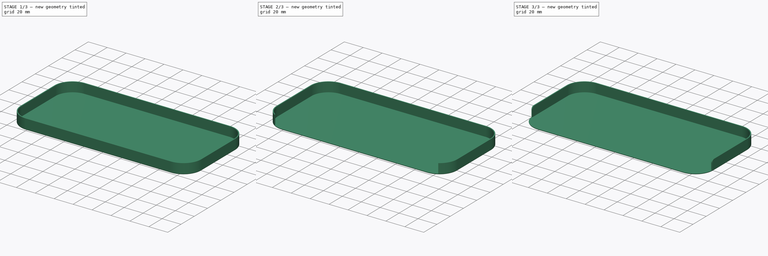
[diagram: build sequence overview — one tinted view per stage of 3, left to right]
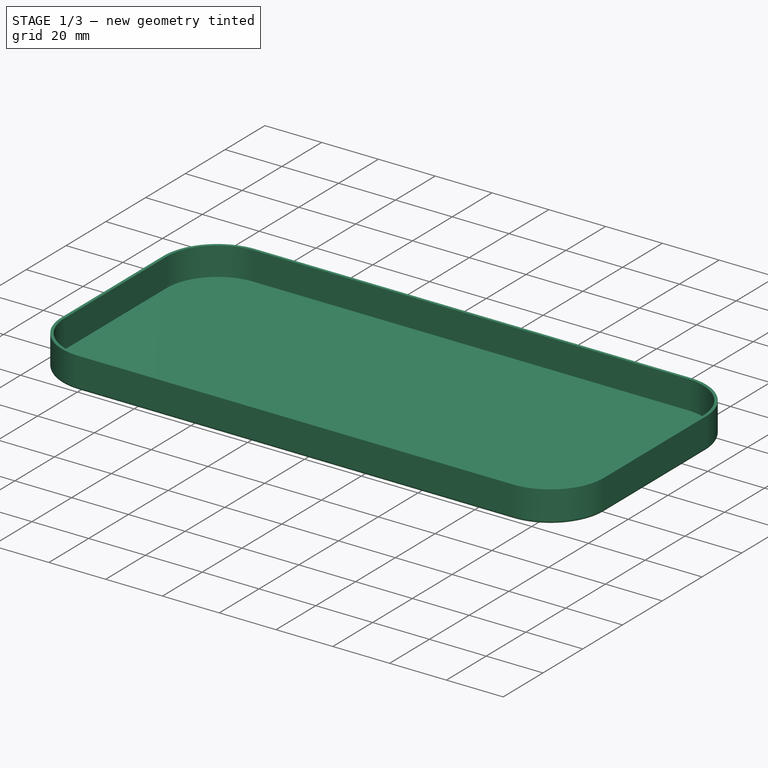
[diagram: stage 1 of 3 — iso view after this stage's code; geometry added in this stage tinted green]
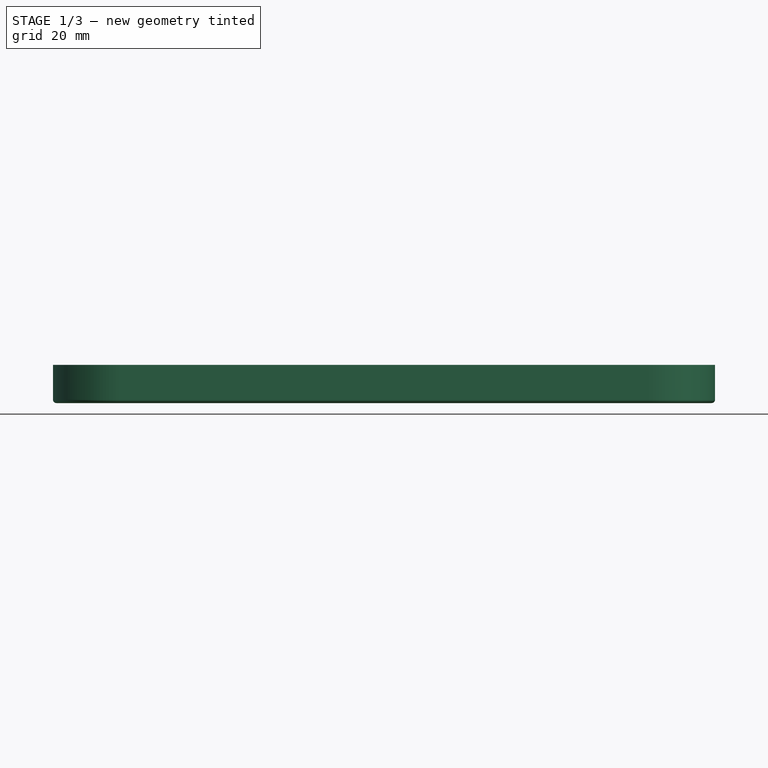
[diagram: stage 1 of 3 — front view after this stage's code; geometry added in this stage tinted green]
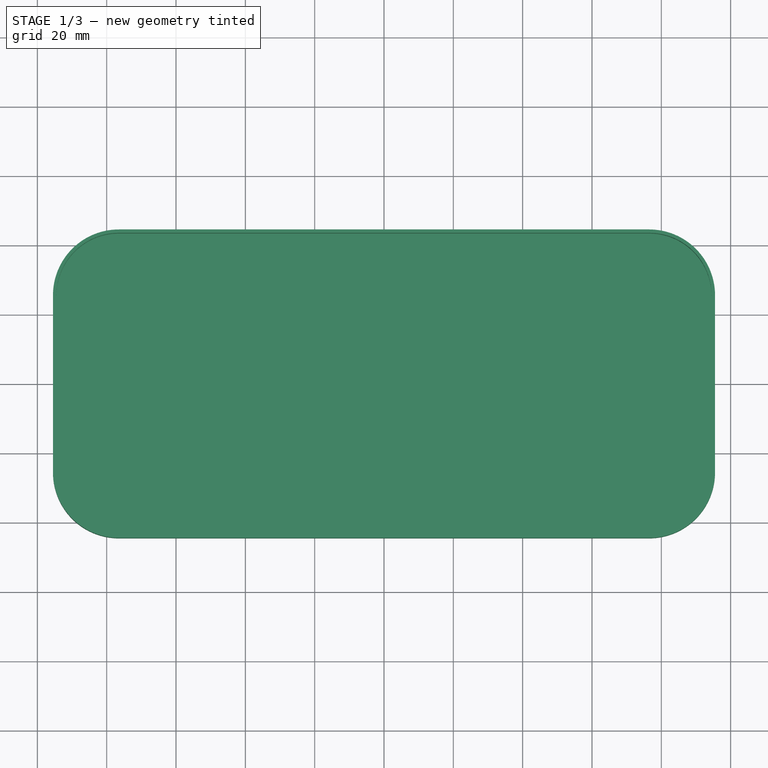
[diagram: stage 1 of 3 — top view after this stage's code; geometry added in this stage tinted green]
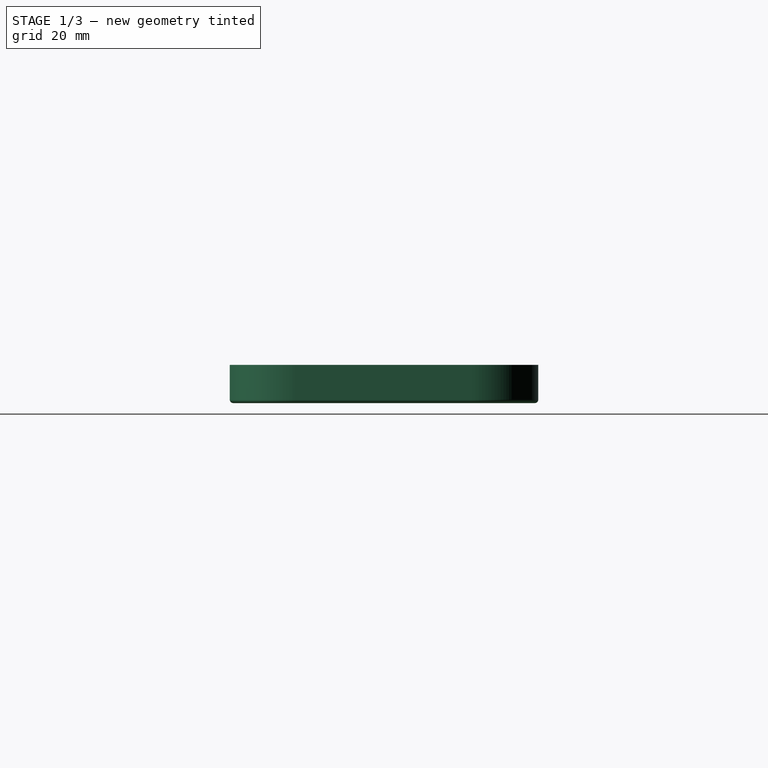
[diagram: stage 1 of 3 — right view after this stage's code; geometry added in this stage tinted green]
FCSTD DOCUMENT  (FreeCAD 0.20R29177 +426 (Git))
Label: test
License: All rights reserved
LicenseURL: http://en.wikipedia.org/wiki/All_rights_reserved
objects: Sketcher::SketchObject×3, PartDesign::Pocket×2, PartDesign::Pad×1, PartDesign::Thickness×1, PartDesign::Fillet×1, PartDesign::Body×1
note: 14 computed .brp shape members not serialized (recipe doc carries the construction recipe); baked Part::Feature solids carry a one-line shape summary decoded from their .brp

FEATURE [Sketcher::SketchObject] Sketch
  FullyConstrained = true
  MapMode = 5
  Support = -> [XY_Plane]
  sketch-geometry (8):
    g0: LineSegment StartX=-76.5 StartY=43.5 StartZ=0 EndX=76.5 EndY=43.5 EndZ=0
    g1: LineSegment StartX=94.5 StartY=25.5 StartZ=0 EndX=94.5 EndY=-25.5 EndZ=0
    g2: LineSegment StartX=76.5 StartY=-43.5 StartZ=0 EndX=-76.5 EndY=-43.5 EndZ=0
    g3: LineSegment StartX=-94.5 StartY=-25.5 StartZ=0 EndX=-94.5 EndY=25.5 EndZ=0
    g4: ArcOfCircle CenterX=76.5 CenterY=25.5 CenterZ=0 NormalX=0 NormalY=0 NormalZ=1 AngleXU=0 Radius=18 StartAngle=5.06e-14 EndAngle=1.5708
    g5: ArcOfCircle CenterX=-76.5 CenterY=25.5 CenterZ=0 NormalX=0 NormalY=0 NormalZ=1 AngleXU=0 Radius=18 StartAngle=1.5708 EndAngle=3.14159
    g6: ArcOfCircle CenterX=-76.5 CenterY=-25.5 CenterZ=0 NormalX=0 NormalY=0 NormalZ=1 AngleXU=0 Radius=18 StartAngle=3.14159 EndAngle=4.71239
    g7: ArcOfCircle CenterX=76.5 CenterY=-25.5 CenterZ=0 NormalX=0 NormalY=0 NormalZ=1 AngleXU=0 Radius=18 StartAngle=4.71239 EndAngle=6.28319
  constraints (19):
    c: Horizontal(g0)
    c: Horizontal(g2)
    c: Vertical(g1)
    c: Vertical(g3)
    c: Tangent(g1,g4) = 1.5708
    c: Tangent(g0,g4) = 1.5708
    c: Tangent(g3,g5) = 1.5708
    c: Tangent(g0,g5) = 1.5708
    c: Tangent(g2,g6) = 1.5708
    c: Tangent(g3,g6) = 1.5708
    c: Tangent(g1,g7) = 1.5708
    c: Tangent(g2,g7) = 1.5708
    c: Radius(g7) = 18
    c: Radius(g6) = 18
    c: Radius(g5) = 18
    c: Radius(g4) = 18
    c: Distance(g0,g2) = 87
    c: Distance(g3,g1) = 189
    c: Symmetric(g0,g2,g-1)
FEATURE [PartDesign::Pad] Pad
  Direction = (0,0,1)
  Length = 10
  Length2 = 10
  Profile = -> Sketch
  ReferenceAxis = -> Sketch [N_Axis]
  Type = 0
FEATURE [PartDesign::Thickness] Thickness
  Base = -> Pad [Face10]
  BaseFeature = -> Pad
  Intersection = false
  Join = 0
  Mode = 0
  SupportTransform = false
  Value = 1
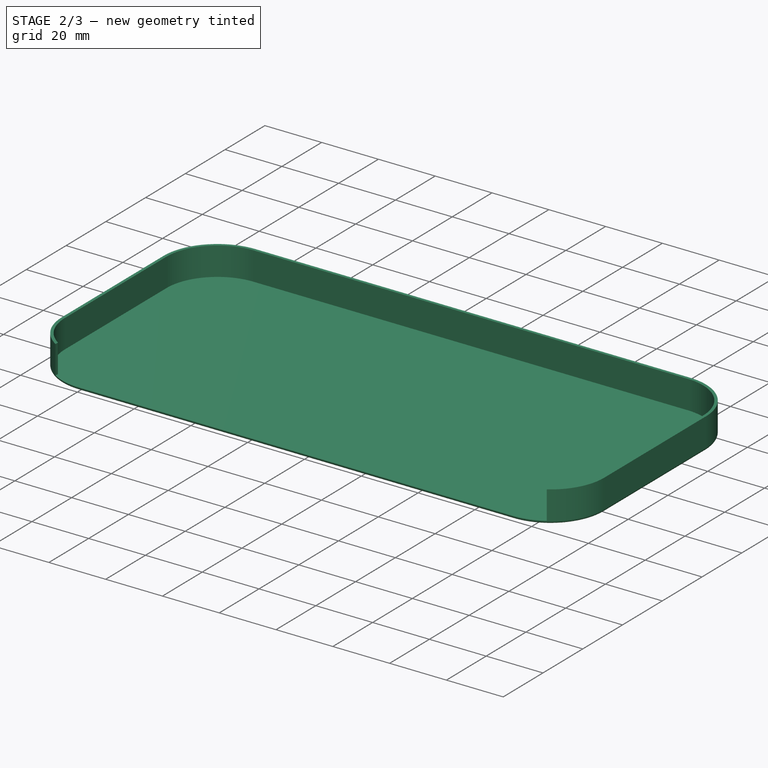
[diagram: stage 2 of 3 — iso view after this stage's code; geometry added in this stage tinted green]
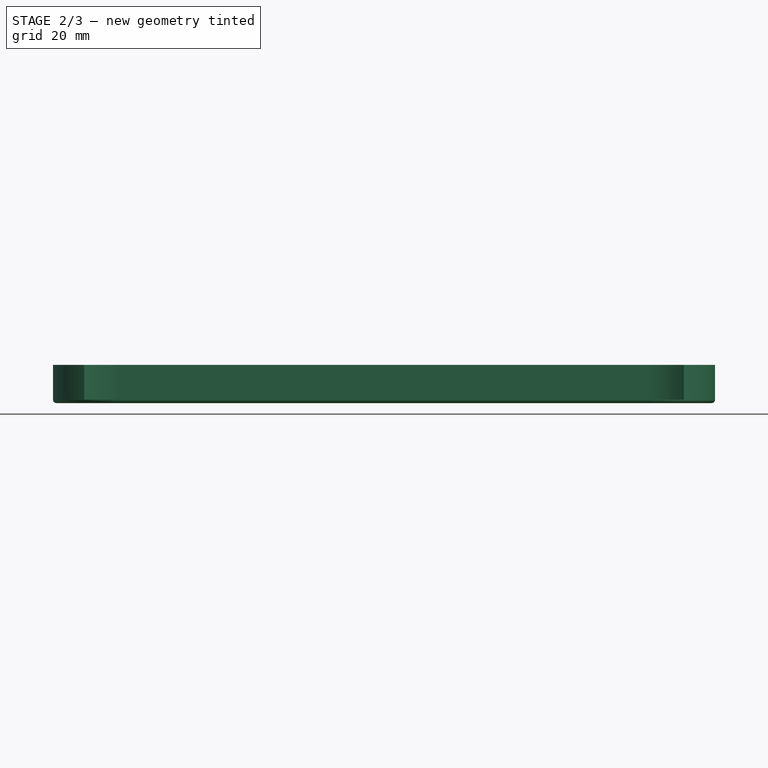
[diagram: stage 2 of 3 — front view after this stage's code; geometry added in this stage tinted green]
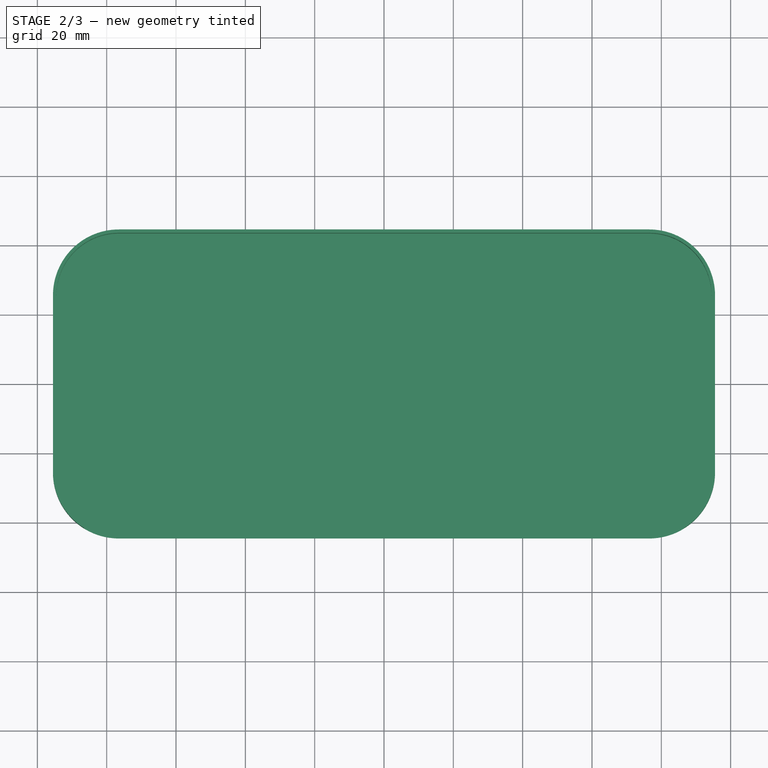
[diagram: stage 2 of 3 — top view after this stage's code; geometry added in this stage tinted green]
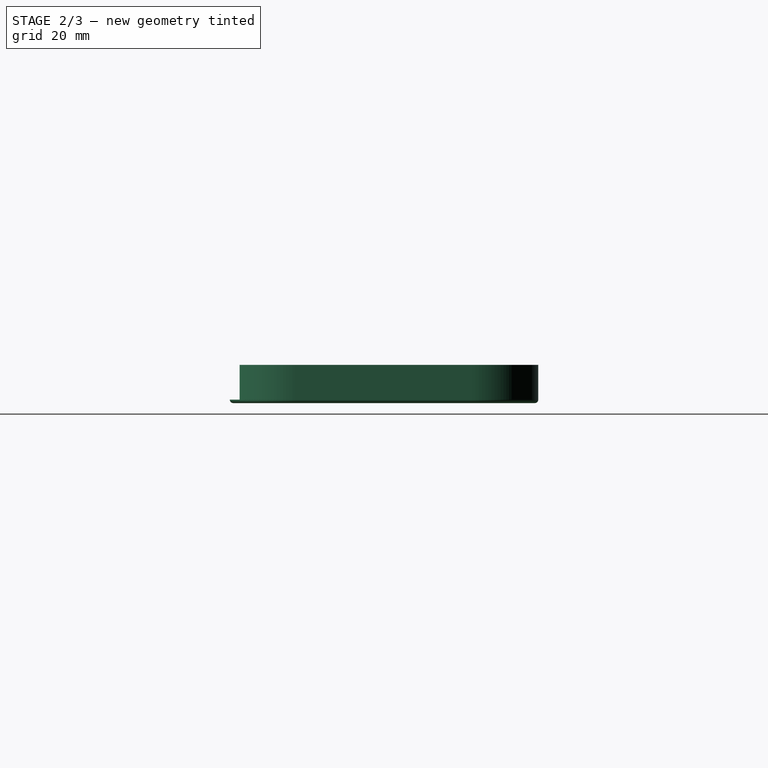
[diagram: stage 2 of 3 — right view after this stage's code; geometry added in this stage tinted green]
FEATURE [Sketcher::SketchObject] Sketch001
  ExternalGeometry = -> [Thickness]
  FullyConstrained = false
  MapMode = 5
  Placement = pos=(0,-43.5,0) rot=(0,0.707107,0.707107;3.14159rad)
  Support = -> [Thickness]
  sketch-geometry (12):
    g0: LineSegment StartX=71.5 StartY=10 StartZ=0 EndX=86.5 EndY=10 EndZ=0
    g1: LineSegment StartX=86.5 StartY=10 StartZ=0 EndX=86.5 EndY=0 EndZ=0
    g2: LineSegment StartX=86.5 StartY=0 StartZ=0 EndX=71.5 EndY=0 EndZ=0
    g3: LineSegment StartX=71.5 StartY=0 StartZ=0 EndX=71.5 EndY=10 EndZ=0
    g4: LineSegment StartX=-86.5 StartY=10 StartZ=0 EndX=-71.5 EndY=10 EndZ=0
    g5: LineSegment StartX=-71.5 StartY=10 StartZ=0 EndX=-71.5 EndY=0 EndZ=0
    g6: LineSegment StartX=-71.5 StartY=0 StartZ=0 EndX=-86.5 EndY=0 EndZ=0
    g7: LineSegment StartX=-86.5 StartY=0 StartZ=0 EndX=-86.5 EndY=10 EndZ=0
    g8: LineSegment StartX=-71.5 StartY=10 StartZ=0 EndX=71.5 EndY=10 EndZ=0
    g9: LineSegment StartX=71.5 StartY=10 StartZ=0 EndX=71.5 EndY=0 EndZ=0
    g10: LineSegment StartX=71.5 StartY=0 StartZ=0 EndX=-71.5 EndY=0 EndZ=0
    g11: LineSegment StartX=-71.5 StartY=0 StartZ=0 EndX=-71.5 EndY=10 EndZ=0
  constraints (34):
    c: Coincident(g0,g1)
    c: Coincident(g1,g2)
    c: Coincident(g2,g3)
    c: Coincident(g3,g0)
    c: Horizontal(g0)
    c: Horizontal(g2)
    c: Vertical(g1)
    c: Vertical(g3)
    c: PointOnObject(g2,g-1)
    c: Distance(g0,g-3) = 10
    c: Distance(g0,g-3) = 5
    c: Coincident(g4,g5)
    c: Coincident(g5,g6)
    c: Coincident(g6,g7)
    c: Coincident(g7,g4)
    c: Horizontal(g4)
    c: Horizontal(g6)
    c: Vertical(g5)
    c: Vertical(g7)
    c: PointOnObject(g5,g-1)
    c: Distance(g4,g-4) = 10
    c: Distance(g4,g-4) = 5
    c: Coincident(g8,g9)
    c: Coincident(g9,g10)
    c: Coincident(g10,g11)
    c: Coincident(g11,g8)
    c: Horizontal(g8)
    c: Horizontal(g10)
    c: Vertical(g9)
    c: Vertical(g11)
    c: PointOnObject(g10,g-1)
    c: PointOnObject(g8,g5)
    c: Coincident(g8,g0)
    c: PointOnObject(g0,g-5)
FEATURE [PartDesign::Pocket] Pocket
  BaseFeature = -> Thickness
  Direction = (0,-1,2e-16)
  Length = 5
  Length2 = 5
  Profile = -> Sketch001
  ReferenceAxis = -> Sketch001 [N_Axis]
  Type = 4
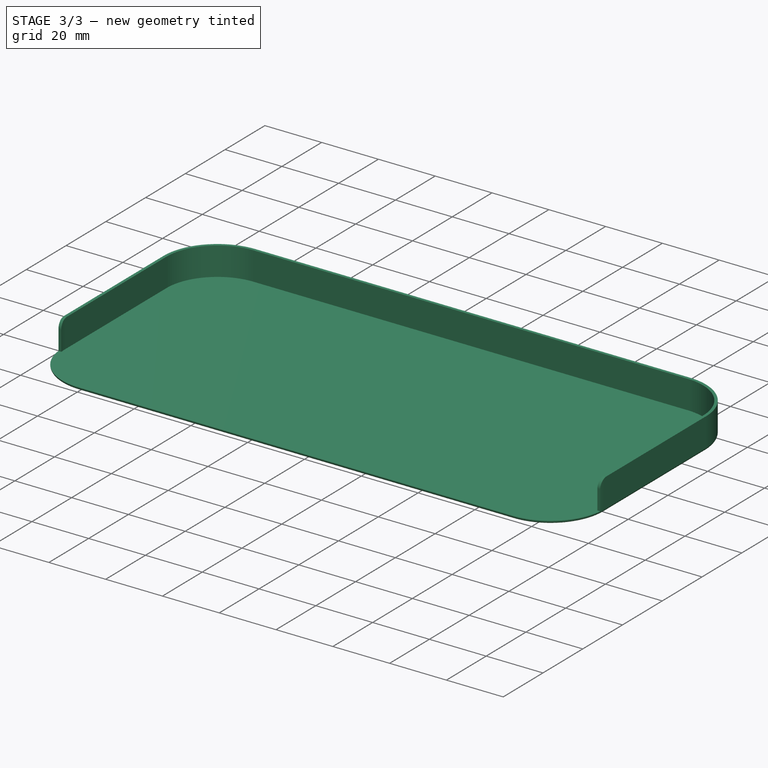
[diagram: stage 3 of 3 — iso view after this stage's code; geometry added in this stage tinted green]
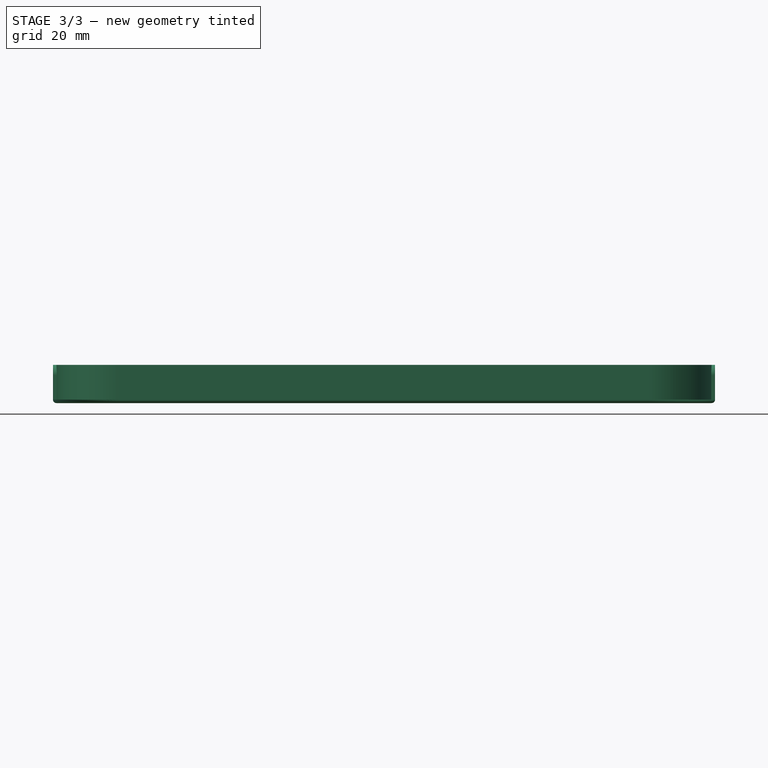
[diagram: stage 3 of 3 — front view after this stage's code; geometry added in this stage tinted green]
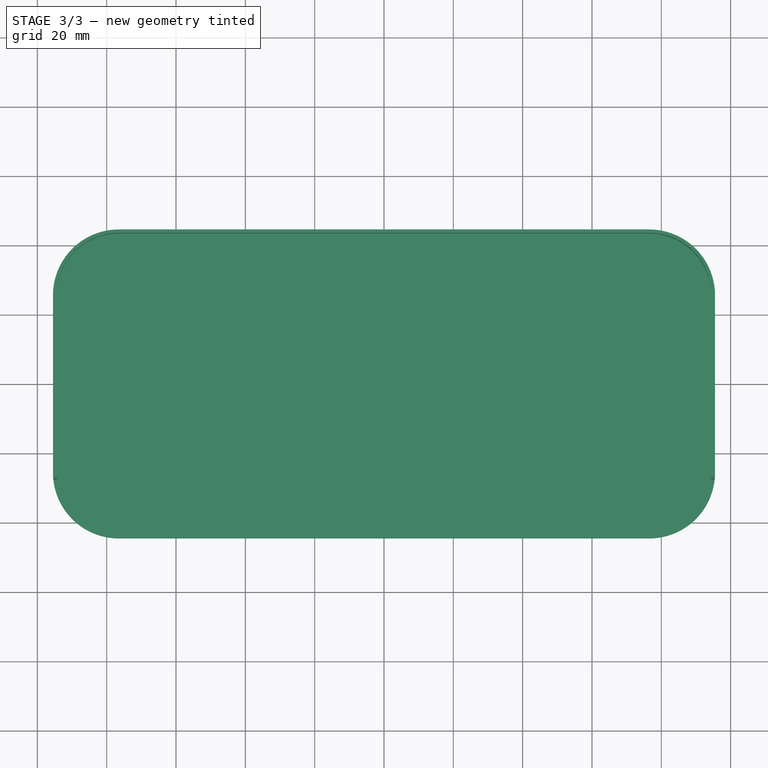
[diagram: stage 3 of 3 — top view after this stage's code; geometry added in this stage tinted green]
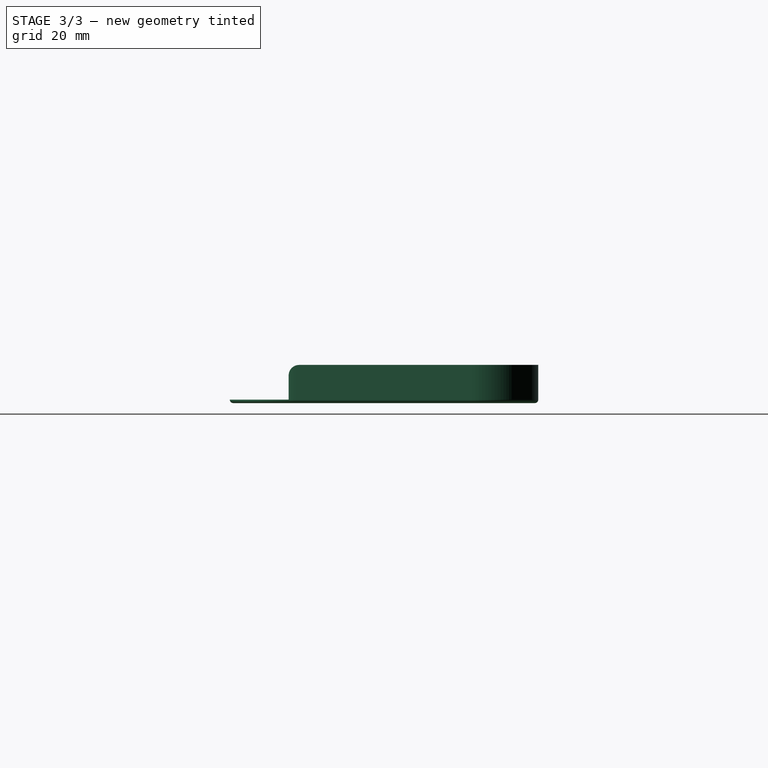
[diagram: stage 3 of 3 — right view after this stage's code; geometry added in this stage tinted green]
FEATURE [Sketcher::SketchObject] Sketch002
  ExternalGeometry = -> [Thickness]
  FullyConstrained = true
  MapMode = 5
  Placement = pos=(0,-44.5,0) rot=(1,0,0;1.5708rad)
  Support = -> [Thickness]
  sketch-geometry (4):
    g0: LineSegment StartX=-95.5 StartY=10 StartZ=0 EndX=95.5 EndY=10 EndZ=0
    g1: LineSegment StartX=95.5 StartY=10 StartZ=0 EndX=95.5 EndY=0 EndZ=0
    g2: LineSegment StartX=95.5 StartY=0 StartZ=0 EndX=-95.5 EndY=0 EndZ=0
    g3: LineSegment StartX=-95.5 StartY=0 StartZ=0 EndX=-95.5 EndY=10 EndZ=0
  constraints (11):
    c: Coincident(g0,g1)
    c: Coincident(g1,g2)
    c: Coincident(g2,g3)
    c: Coincident(g3,g0)
    c: Horizontal(g0)
    c: Horizontal(g2)
    c: Vertical(g1)
    c: Vertical(g3)
    c: Coincident(g0,g-4)
    c: PointOnObject(g2,g-1)
    c: PointOnObject(g1,g-3)
FEATURE [PartDesign::Pocket] Pocket001
  BaseFeature = -> Pocket
  Direction = (0,1,-2e-16)
  Length = 17
  Length2 = 5
  Profile = -> Sketch002
  ReferenceAxis = -> Sketch002 [N_Axis]
  Type = 0
FEATURE [PartDesign::Fillet] Fillet
  Base = -> Pocket001 [Edge18,Edge26]
  BaseFeature = -> Pocket001
  Radius = 3
  SupportTransform = false
  UseAllEdges = false
FEATURE [PartDesign::Body] Body
  Group = -> [Sketch,Pad,Thickness,Sketch001,Pocket,Sketch002,Pocket001,Fillet]
  Origin = -> Origin
  Tip = -> Fillet
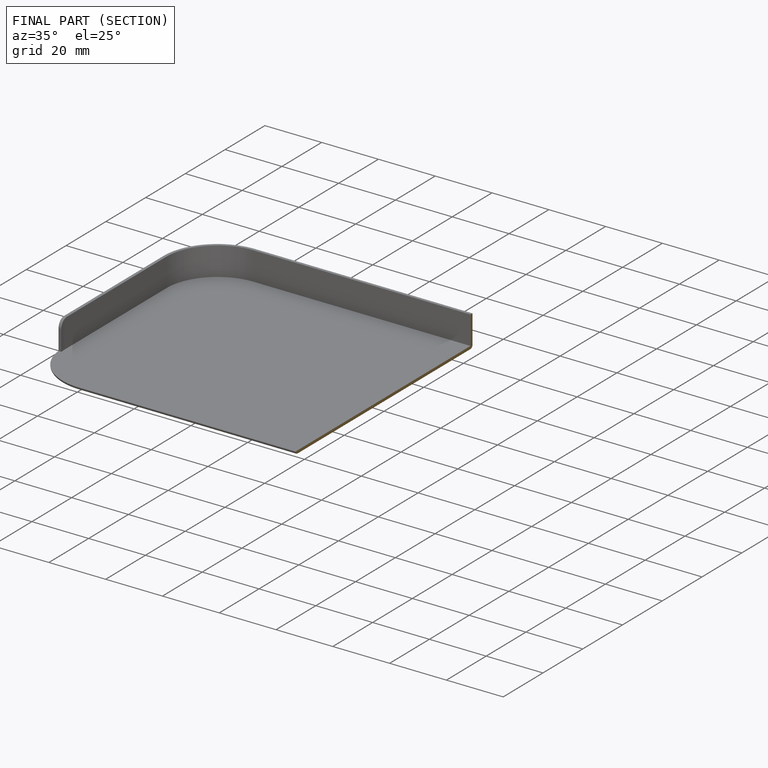
[diagram: finished part — half-section view (interior)]
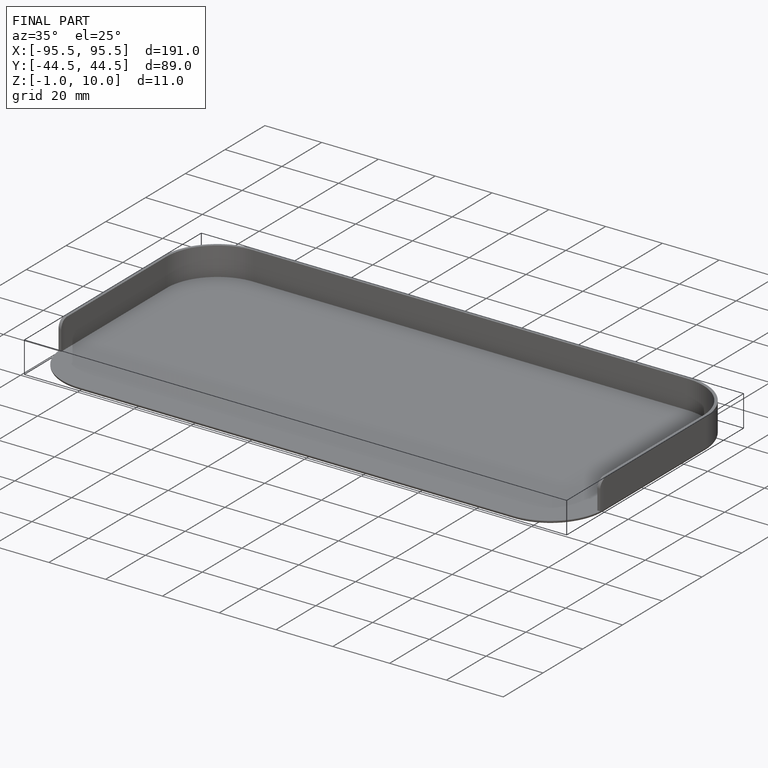
[diagram: finished part — iso view with bounding-box wireframe]
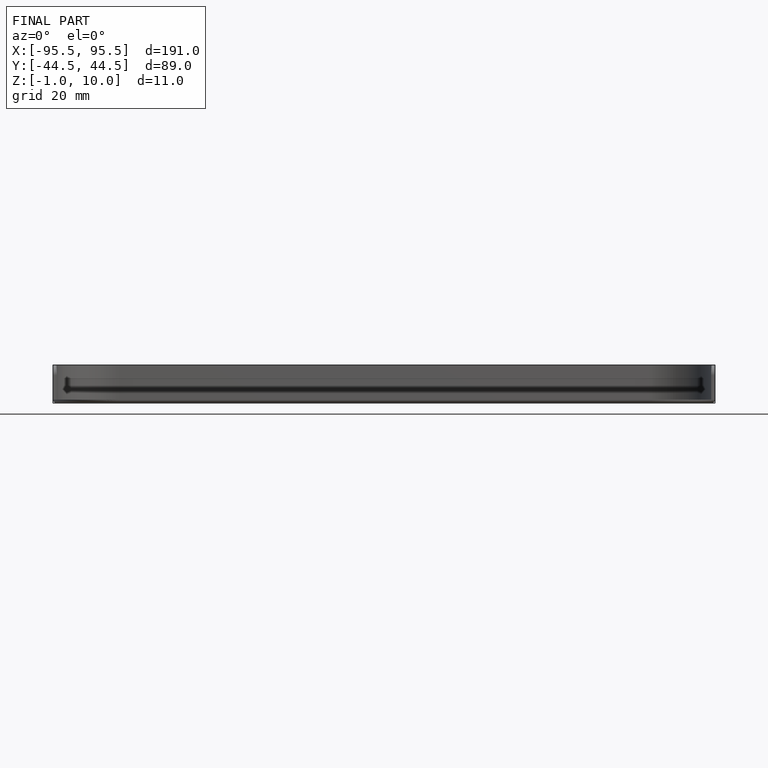
[diagram: finished part — front view with bounding-box wireframe]
